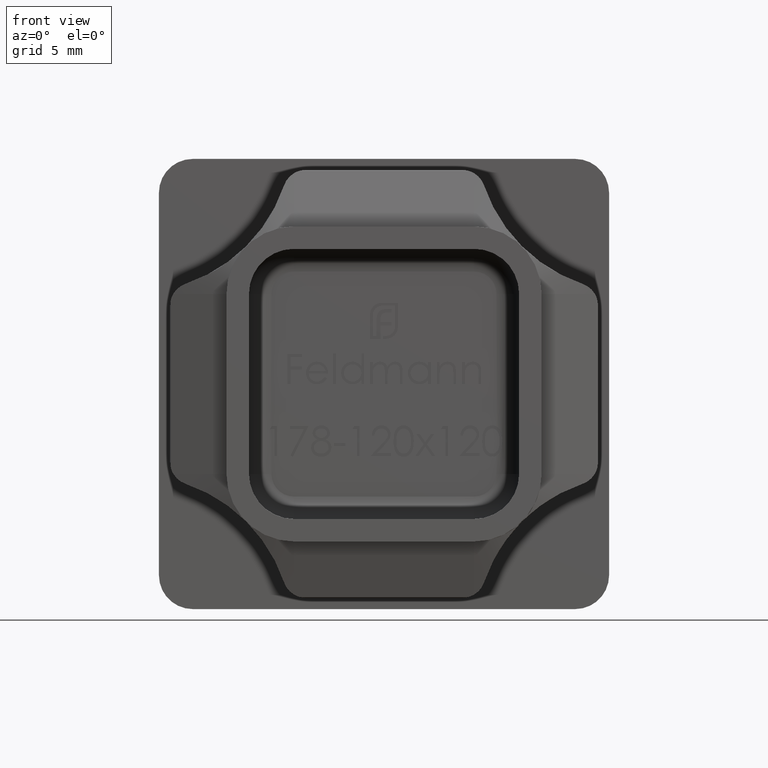
[diagram: clean part render]
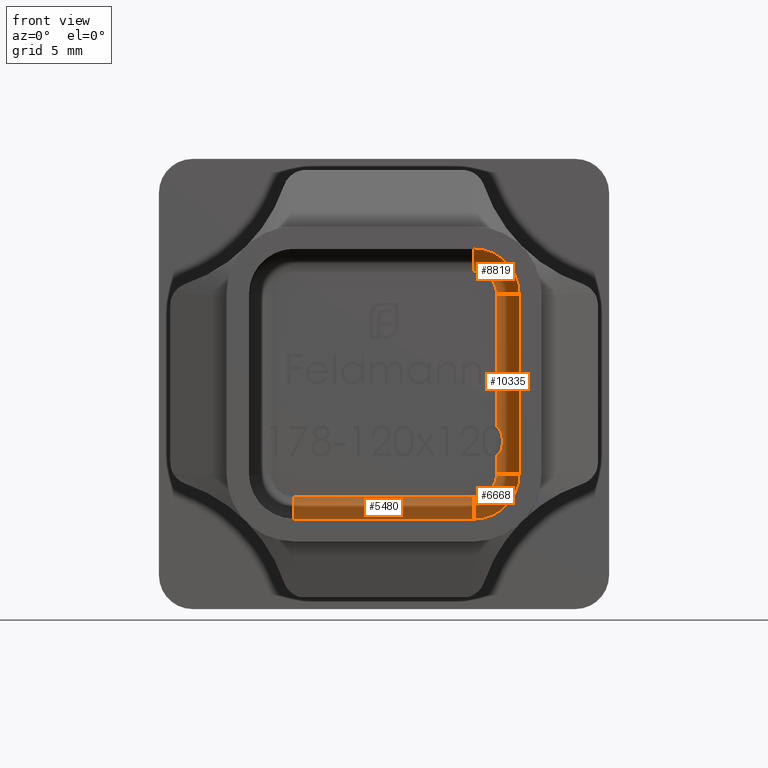
[diagram: same view with one multi-face feature highlighted, each face labeled with its STEP entity id]
A machine part, front view. The highlighted faces form ONE feature: a constant-radius fillet chain: 4 tangent blend faces with common blend radius 1 mm. The faces share edges in the B-rep.
Their STEP definitions:
[1] entity #8819 (Torus):
#33 = DIRECTION ( 'NONE',  ( 0.000000000000000000, 0.000000000000000000, 1.000000000000000000 ) ) ;
#50 = EDGE_CURVE ( 'NONE', #6361, #5441, #16951, .T. ) ;
#598 = DIRECTION ( 'NONE',  ( 0.000000000000000000, 0.000000000000000000, -1.000000000000000000 ) ) ;
#1457 = ORIENTED_EDGE ( 'NONE', *, *, #3146, .T. ) ;
#1597 = DIRECTION ( 'NONE',  ( 0.000000000000000000, 1.000000000000000000, 0.000000000000000000 ) ) ;
#1904 = ORIENTED_EDGE ( 'NONE', *, *, #17298, .F. ) ;
#2027 = TOROIDAL_SURFACE ( 'NONE', #6245, 1.000000000000001776, 1.000000000000000000 ) ;
#2765 = DIRECTION ( 'NONE',  ( -1.000000000000000000, 0.000000000000000000, -3.469446951953614189E-15 ) ) ;
#3146 = EDGE_CURVE ( 'NONE', #6361, #4180, #13253, .T. ) ;
#3607 = AXIS2_PLACEMENT_3D ( 'NONE', #11734, #16352, #598 ) ;
#3616 = CARTESIAN_POINT ( 'NONE',  ( 3.999999999999982681, 0.000000000000000000, 3.999999999999996447 ) ) ;
#4180 = VERTEX_POINT ( 'NONE', #7551 ) ;
#5441 = VERTEX_POINT ( 'NONE', #8941 ) ;
#5924 = ORIENTED_EDGE ( 'NONE', *, *, #18474, .F. ) ;
#6245 = AXIS2_PLACEMENT_3D ( 'NONE', #17070, #20343, #7537 ) ;
#6361 = VERTEX_POINT ( 'NONE', #17068 ) ;
#6940 = VERTEX_POINT ( 'NONE', #11846 ) ;
#7537 = DIRECTION ( 'NONE',  ( 0.000000000000000000, 0.000000000000000000, 1.000000000000000000 ) ) ;
#7551 = CARTESIAN_POINT ( 'NONE',  ( 5.999999999999984901, -1.000000000000000888, 4.000000000000003553 ) ) ;
#8171 = ORIENTED_EDGE ( 'NONE', *, *, #50, .F. ) ;
#8481 = FACE_OUTER_BOUND ( 'NONE', #17031, .T. ) ;
#8819 = ADVANCED_FACE ( 'NONE', ( #8481 ), #2027, .F. ) ;
#8941 = CARTESIAN_POINT ( 'NONE',  ( 3.999999999999976019, 0.000000000000000000, 4.999999999999998224 ) ) ;
#9557 = CARTESIAN_POINT ( 'NONE',  ( 3.999999999999982681, -1.000000000000000888, 3.999999999999996447 ) ) ;
#11734 = CARTESIAN_POINT ( 'NONE',  ( 3.999999999999976019, -1.000000000000000000, 4.999999999999998224 ) ) ;
#11846 = CARTESIAN_POINT ( 'NONE',  ( 3.999999999999976019, -1.000000000000000888, 5.999999999999998224 ) ) ;
#12374 = AXIS2_PLACEMENT_3D ( 'NONE', #3616, #16254, #17713 ) ;
#13253 = CIRCLE ( 'NONE', #19574, 1.000000000000000000 ) ;
#15086 = AXIS2_PLACEMENT_3D ( 'NONE', #9557, #1597, #33 ) ;
#15260 = CARTESIAN_POINT ( 'NONE',  ( 4.999999999999984901, -1.000000000000000000, 4.000000000000000000 ) ) ;
#16254 = DIRECTION ( 'NONE',  ( -0.000000000000000000, -1.000000000000000000, -0.000000000000000000 ) ) ;
#16352 = DIRECTION ( 'NONE',  ( 1.000000000000000000, 0.000000000000000000, -0.000000000000000000 ) ) ;
#16454 = CIRCLE ( 'NONE', #15086, 2.000000000000001776 ) ;
#16951 = CIRCLE ( 'NONE', #12374, 1.000000000000001776 ) ;
#17031 = EDGE_LOOP ( 'NONE', ( #1457, #1904, #5924, #8171 ) ) ;
#17068 = CARTESIAN_POINT ( 'NONE',  ( 4.999999999999984901, 0.000000000000000000, 4.000000000000000000 ) ) ;
#17070 = CARTESIAN_POINT ( 'NONE',  ( 3.999999999999982681, -1.000000000000000888, 3.999999999999996447 ) ) ;
#17182 = CIRCLE ( 'NONE', #3607, 1.000000000000000000 ) ;
#17298 = EDGE_CURVE ( 'NONE', #6940, #4180, #16454, .T. ) ;
#17713 = DIRECTION ( 'NONE',  ( 2.168404344971005081E-14, 0.000000000000000000, 1.000000000000000000 ) ) ;
#18474 = EDGE_CURVE ( 'NONE', #5441, #6940, #17182, .T. ) ;
#19574 = AXIS2_PLACEMENT_3D ( 'NONE', #15260, #20001, #2765 ) ;
#20001 = DIRECTION ( 'NONE',  ( 3.469446951953614189E-15, 0.000000000000000000, -1.000000000000000000 ) ) ;
#20343 = DIRECTION ( 'NONE',  ( 0.000000000000000000, 1.000000000000000000, 0.000000000000000000 ) ) ;
[2] entity #10335 (Cylinder):
#73 = CARTESIAN_POINT ( 'NONE',  ( 5.999999999999984901, -1.000000000000000888, 4.000000000000003553 ) ) ;
#780 = DIRECTION ( 'NONE',  ( 8.673617379884059138E-16, -0.000000000000000000, 1.000000000000000000 ) ) ;
#858 = CARTESIAN_POINT ( 'NONE',  ( 4.999999999999981348, -1.000000000000000000, -4.336808689942013003E-15 ) ) ;
#880 = AXIS2_PLACEMENT_3D ( 'NONE', #9357, #19337, #16129 ) ;
#1015 = VECTOR ( 'NONE', #780, 1000.000000000000000 ) ;
#1353 = VERTEX_POINT ( 'NONE', #20178 ) ;
#2068 = CARTESIAN_POINT ( 'NONE',  ( 4.999999990512664638, 0.000000000000000000, -1.900706125365534183 ) ) ;
#2183 = CARTESIAN_POINT ( 'NONE',  ( 5.105604138429948868, -2.001115337888283935E-17, -3.123518173612068072 ) ) ;
#2514 = DIRECTION ( 'NONE',  ( 1.000000000000000000, 0.000000000000000000, -8.673617379884058152E-16 ) ) ;
#2765 = DIRECTION ( 'NONE',  ( -1.000000000000000000, 0.000000000000000000, -3.469446951953614189E-15 ) ) ;
#2774 = CYLINDRICAL_SURFACE ( 'NONE', #19910, 1.000000000000000000 ) ;
#2833 = B_SPLINE_CURVE_WITH_KNOTS ( 'NONE', 3,
 ( #16718, #2183, #3819, #14847, #5403, #16789 ),
 .UNSPECIFIED., .F., .F.,
 ( 4, 2, 4 ),
 ( 7.407889679973177123E-12, 0.0003621747106927957296, 0.0007243494139777018363 ),
 .UNSPECIFIED. ) ;
#2997 = CARTESIAN_POINT ( 'NONE',  ( 4.999999999999981348, 0.000000000000000000, -4.336808689942013003E-15 ) ) ;
#3146 = EDGE_CURVE ( 'NONE', #6361, #4180, #13253, .T. ) ;
#3332 = ORIENTED_EDGE ( 'NONE', *, *, #6148, .F. ) ;
#3365 = B_SPLINE_CURVE_WITH_KNOTS ( 'NONE', 3,
 ( #5296, #5152, #18008, #17781, #19480, #2068 ),
 .UNSPECIFIED., .F., .F.,
 ( 4, 2, 4 ),
 ( 0.000000000000000000, 0.0003608629249519348025, 0.0007217258499038696051 ),
 .UNSPECIFIED. ) ;
#3788 = VECTOR ( 'NONE', #19105, 1000.000000000000000 ) ;
#3819 = CARTESIAN_POINT ( 'NONE',  ( 5.175598494840011554, -0.01481395747498494460, -3.016206464346978144 ) ) ;
#3999 = ORIENTED_EDGE ( 'NONE', *, *, #3146, .F. ) ;
#4180 = VERTEX_POINT ( 'NONE', #7551 ) ;
#4195 = ORIENTED_EDGE ( 'NONE', *, *, #6566, .F. ) ;
#4232 = VERTEX_POINT ( 'NONE', #12761 ) ;
#4311 = EDGE_CURVE ( 'NONE', #12402, #1353, #12495, .T. ) ;
#4814 = VECTOR ( 'NONE', #17289, 1000.000000000000000 ) ;
#5152 = CARTESIAN_POINT ( 'NONE',  ( 5.256293822818436823, -0.03339990977814485257, -2.422902983920533160 ) ) ;
#5278 = LINE ( 'NONE', #73, #3788 ) ;
#5296 = CARTESIAN_POINT ( 'NONE',  ( 5.257745726495721250, -0.03378721780697710453, -2.543932792467948900 ) ) ;
#5403 = CARTESIAN_POINT ( 'NONE',  ( 5.256273014586601455, -0.03339435899996154311, -2.664907572153072390 ) ) ;
#5704 = CARTESIAN_POINT ( 'NONE',  ( 4.999999990512664638, 0.000000000000000000, -1.900706125365534183 ) ) ;
#5790 = EDGE_LOOP ( 'NONE', ( #9144, #3332, #3999, #4195, #8849, #14836, #18813 ) ) ;
#6092 = CARTESIAN_POINT ( 'NONE',  ( 5.000000009685904523, 0.000000000000000000, -3.185670050150754662 ) ) ;
#6148 = EDGE_CURVE ( 'NONE', #4180, #1353, #5278, .T. ) ;
#6361 = VERTEX_POINT ( 'NONE', #17068 ) ;
#6566 = EDGE_CURVE ( 'NONE', #12616, #6361, #16872, .T. ) ;
#7159 = CARTESIAN_POINT ( 'NONE',  ( 4.999999999999981348, 0.000000000000000000, -4.336808689942013003E-15 ) ) ;
#7551 = CARTESIAN_POINT ( 'NONE',  ( 5.999999999999984901, -1.000000000000000888, 4.000000000000003553 ) ) ;
#8172 = EDGE_CURVE ( 'NONE', #4232, #12616, #3365, .T. ) ;
#8602 = EDGE_CURVE ( 'NONE', #12402, #8900, #14193, .T. ) ;
#8670 = DIRECTION ( 'NONE',  ( 8.673617379884059138E-16, -0.000000000000000000, 1.000000000000000000 ) ) ;
#8849 = ORIENTED_EDGE ( 'NONE', *, *, #8172, .F. ) ;
#8900 = VERTEX_POINT ( 'NONE', #6092 ) ;
#9144 = ORIENTED_EDGE ( 'NONE', *, *, #4311, .T. ) ;
#9357 = CARTESIAN_POINT ( 'NONE',  ( 4.999999999999981348, -1.000000000000000000, -3.999999999999975131 ) ) ;
#9564 = CARTESIAN_POINT ( 'NONE',  ( 4.999999999999981348, 0.000000000000000000, -3.999999999999975131 ) ) ;
#9958 = FACE_OUTER_BOUND ( 'NONE', #5790, .T. ) ;
#10335 = ADVANCED_FACE ( 'NONE', ( #9958 ), #2774, .F. ) ;
#12402 = VERTEX_POINT ( 'NONE', #9564 ) ;
#12495 = CIRCLE ( 'NONE', #880, 1.000000000000000000 ) ;
#12616 = VERTEX_POINT ( 'NONE', #5704 ) ;
#12761 = CARTESIAN_POINT ( 'NONE',  ( 5.257745726495721250, -0.03378721780697710453, -2.543932792467948900 ) ) ;
#13253 = CIRCLE ( 'NONE', #19574, 1.000000000000000000 ) ;
#14193 = LINE ( 'NONE', #2997, #4814 ) ;
#14836 = ORIENTED_EDGE ( 'NONE', *, *, #18167, .F. ) ;
#14847 = CARTESIAN_POINT ( 'NONE',  ( 5.249407933733455600, -0.03086530741749634113, -2.786669984339080752 ) ) ;
#15260 = CARTESIAN_POINT ( 'NONE',  ( 4.999999999999984901, -1.000000000000000000, 4.000000000000000000 ) ) ;
#16129 = DIRECTION ( 'NONE',  ( -1.000000000000000000, 0.000000000000000000, 8.673617379884035472E-16 ) ) ;
#16718 = CARTESIAN_POINT ( 'NONE',  ( 5.000000009685904523, 0.000000000000000000, -3.185670050150754662 ) ) ;
#16789 = CARTESIAN_POINT ( 'NONE',  ( 5.257745726495721250, -0.03378721780697710453, -2.543932792467948900 ) ) ;
#16872 = LINE ( 'NONE', #7159, #1015 ) ;
#17068 = CARTESIAN_POINT ( 'NONE',  ( 4.999999999999984901, 0.000000000000000000, 4.000000000000000000 ) ) ;
#17289 = DIRECTION ( 'NONE',  ( 8.673617379884059138E-16, -0.000000000000000000, 1.000000000000000000 ) ) ;
#17781 = CARTESIAN_POINT ( 'NONE',  ( 5.174391557781304662, -0.01456602889882599450, -2.070351828751281431 ) ) ;
#18008 = CARTESIAN_POINT ( 'NONE',  ( 5.249899296130951853, -0.03095775705139057130, -2.301959710432628814 ) ) ;
#18167 = EDGE_CURVE ( 'NONE', #8900, #4232, #2833, .T. ) ;
#18813 = ORIENTED_EDGE ( 'NONE', *, *, #8602, .F. ) ;
#19105 = DIRECTION ( 'NONE',  ( -8.673617379884059138E-16, -0.000000000000000000, -1.000000000000000000 ) ) ;
#19337 = DIRECTION ( 'NONE',  ( -8.673617379884035472E-16, 0.000000000000000000, -1.000000000000000000 ) ) ;
#19480 = CARTESIAN_POINT ( 'NONE',  ( 5.106415925215519458, 2.908415649192451414E-10, -1.962350787903712979 ) ) ;
#19574 = AXIS2_PLACEMENT_3D ( 'NONE', #15260, #20001, #2765 ) ;
#19910 = AXIS2_PLACEMENT_3D ( 'NONE', #858, #8670, #2514 ) ;
#20001 = DIRECTION ( 'NONE',  ( 3.469446951953614189E-15, 0.000000000000000000, -1.000000000000000000 ) ) ;
#20178 = CARTESIAN_POINT ( 'NONE',  ( 5.999999999999977796, -1.000000000000000888, -3.999999999999976019 ) ) ;
[3] entity #6668 (Torus):
#331 = DIRECTION ( 'NONE',  ( 0.000000000000000000, 0.000000000000000000, 1.000000000000000000 ) ) ;
#772 = ORIENTED_EDGE ( 'NONE', *, *, #4311, .F. ) ;
#856 = VERTEX_POINT ( 'NONE', #8283 ) ;
#880 = AXIS2_PLACEMENT_3D ( 'NONE', #9357, #19337, #16129 ) ;
#1353 = VERTEX_POINT ( 'NONE', #20178 ) ;
#2509 = FACE_OUTER_BOUND ( 'NONE', #10348, .T. ) ;
#2720 = DIRECTION ( 'NONE',  ( 0.000000000000000000, 1.000000000000000000, 0.000000000000000000 ) ) ;
#3207 = VERTEX_POINT ( 'NONE', #15688 ) ;
#4311 = EDGE_CURVE ( 'NONE', #12402, #1353, #12495, .T. ) ;
#5575 = AXIS2_PLACEMENT_3D ( 'NONE', #12182, #12613, #17445 ) ;
#6308 = CARTESIAN_POINT ( 'NONE',  ( 3.999999999999982681, -1.000000000000000000, -4.999999999999984901 ) ) ;
#6668 = ADVANCED_FACE ( 'NONE', ( #2509 ), #12433, .F. ) ;
#7480 = CIRCLE ( 'NONE', #8766, 1.000000000000000000 ) ;
#8283 = CARTESIAN_POINT ( 'NONE',  ( 3.999999999999982681, 0.000000000000000000, -4.999999999999984901 ) ) ;
#8335 = EDGE_CURVE ( 'NONE', #1353, #3207, #13206, .T. ) ;
#8766 = AXIS2_PLACEMENT_3D ( 'NONE', #6308, #14163, #18828 ) ;
#9357 = CARTESIAN_POINT ( 'NONE',  ( 4.999999999999981348, -1.000000000000000000, -3.999999999999975131 ) ) ;
#9564 = CARTESIAN_POINT ( 'NONE',  ( 4.999999999999981348, 0.000000000000000000, -3.999999999999975131 ) ) ;
#10348 = EDGE_LOOP ( 'NONE', ( #12596, #17306, #772, #19778 ) ) ;
#10913 = DIRECTION ( 'NONE',  ( -0.000000000000000000, -1.000000000000000000, -0.000000000000000000 ) ) ;
#11729 = CARTESIAN_POINT ( 'NONE',  ( 3.999999999999982681, -1.000000000000000888, -3.999999999999982681 ) ) ;
#12182 = CARTESIAN_POINT ( 'NONE',  ( 3.999999999999982681, -1.000000000000000888, -3.999999999999982681 ) ) ;
#12207 = AXIS2_PLACEMENT_3D ( 'NONE', #15738, #10913, #331 ) ;
#12402 = VERTEX_POINT ( 'NONE', #9564 ) ;
#12433 = TOROIDAL_SURFACE ( 'NONE', #18420, 0.9999999999999983347, 1.000000000000000000 ) ;
#12495 = CIRCLE ( 'NONE', #880, 1.000000000000000000 ) ;
#12596 = ORIENTED_EDGE ( 'NONE', *, *, #19843, .T. ) ;
#12613 = DIRECTION ( 'NONE',  ( 0.000000000000000000, 1.000000000000000000, 0.000000000000000000 ) ) ;
#13206 = CIRCLE ( 'NONE', #5575, 1.999999999999998224 ) ;
#13777 = DIRECTION ( 'NONE',  ( 0.000000000000000000, 0.000000000000000000, 1.000000000000000000 ) ) ;
#14163 = DIRECTION ( 'NONE',  ( -1.000000000000000000, 0.000000000000000000, 0.000000000000000000 ) ) ;
#14953 = CIRCLE ( 'NONE', #12207, 0.9999999999999983347 ) ;
#15688 = CARTESIAN_POINT ( 'NONE',  ( 3.999999999999982681, -1.000000000000000888, -5.999999999999981348 ) ) ;
#15738 = CARTESIAN_POINT ( 'NONE',  ( 3.999999999999982681, 0.000000000000000000, -3.999999999999982681 ) ) ;
#16129 = DIRECTION ( 'NONE',  ( -1.000000000000000000, 0.000000000000000000, 8.673617379884035472E-16 ) ) ;
#16981 = EDGE_CURVE ( 'NONE', #856, #12402, #14953, .T. ) ;
#17306 = ORIENTED_EDGE ( 'NONE', *, *, #8335, .F. ) ;
#17445 = DIRECTION ( 'NONE',  ( 0.000000000000000000, 0.000000000000000000, 1.000000000000000000 ) ) ;
#18420 = AXIS2_PLACEMENT_3D ( 'NONE', #11729, #2720, #13777 ) ;
#18828 = DIRECTION ( 'NONE',  ( 0.000000000000000000, 0.000000000000000000, 1.000000000000000000 ) ) ;
#19337 = DIRECTION ( 'NONE',  ( -8.673617379884035472E-16, 0.000000000000000000, -1.000000000000000000 ) ) ;
#19778 = ORIENTED_EDGE ( 'NONE', *, *, #16981, .F. ) ;
#19843 = EDGE_CURVE ( 'NONE', #856, #3207, #7480, .T. ) ;
#20178 = CARTESIAN_POINT ( 'NONE',  ( 5.999999999999977796, -1.000000000000000888, -3.999999999999976019 ) ) ;
[4] entity #5480 (Cylinder):
#80 = ORIENTED_EDGE ( 'NONE', *, *, #14552, .F. ) ;
#159 = VECTOR ( 'NONE', #13197, 1000.000000000000000 ) ;
#264 = CARTESIAN_POINT ( 'NONE',  ( -4.000000000000003553, -1.000000000000000888, -5.999999999999984901 ) ) ;
#538 = CARTESIAN_POINT ( 'NONE',  ( -4.000000000000003553, -1.000000000000000888, -5.999999999999984901 ) ) ;
#782 = DIRECTION ( 'NONE',  ( 1.000000000000000000, -0.000000000000000000, 0.000000000000000000 ) ) ;
#853 = DIRECTION ( 'NONE',  ( 0.000000000000000000, 0.000000000000000000, -1.000000000000000000 ) ) ;
#856 = VERTEX_POINT ( 'NONE', #8283 ) ;
#2670 = EDGE_CURVE ( 'NONE', #3207, #2688, #14481, .T. ) ;
#2688 = VERTEX_POINT ( 'NONE', #538 ) ;
#2761 = LINE ( 'NONE', #16325, #17594 ) ;
#3207 = VERTEX_POINT ( 'NONE', #15688 ) ;
#4702 = AXIS2_PLACEMENT_3D ( 'NONE', #5558, #5283, #8575 ) ;
#5220 = ORIENTED_EDGE ( 'NONE', *, *, #2670, .F. ) ;
#5283 = DIRECTION ( 'NONE',  ( 1.000000000000000000, -0.000000000000000000, 0.000000000000000000 ) ) ;
#5480 = ADVANCED_FACE ( 'NONE', ( #8003 ), #9713, .F. ) ;
#5558 = CARTESIAN_POINT ( 'NONE',  ( -4.000000000000003553, -1.000000000000000000, -4.999999999999984901 ) ) ;
#6199 = ORIENTED_EDGE ( 'NONE', *, *, #19843, .F. ) ;
#6308 = CARTESIAN_POINT ( 'NONE',  ( 3.999999999999982681, -1.000000000000000000, -4.999999999999984901 ) ) ;
#7480 = CIRCLE ( 'NONE', #8766, 1.000000000000000000 ) ;
#8003 = FACE_OUTER_BOUND ( 'NONE', #19311, .T. ) ;
#8139 = EDGE_CURVE ( 'NONE', #20032, #856, #2761, .T. ) ;
#8283 = CARTESIAN_POINT ( 'NONE',  ( 3.999999999999982681, 0.000000000000000000, -4.999999999999984901 ) ) ;
#8383 = DIRECTION ( 'NONE',  ( 1.000000000000000000, -0.000000000000000000, 0.000000000000000000 ) ) ;
#8575 = DIRECTION ( 'NONE',  ( 0.000000000000000000, 0.000000000000000000, -1.000000000000000000 ) ) ;
#8766 = AXIS2_PLACEMENT_3D ( 'NONE', #6308, #14163, #18828 ) ;
#9615 = ORIENTED_EDGE ( 'NONE', *, *, #8139, .F. ) ;
#9713 = CYLINDRICAL_SURFACE ( 'NONE', #18542, 1.000000000000000000 ) ;
#12052 = CIRCLE ( 'NONE', #4702, 1.000000000000000000 ) ;
#13197 = DIRECTION ( 'NONE',  ( -1.000000000000000000, -0.000000000000000000, -0.000000000000000000 ) ) ;
#14163 = DIRECTION ( 'NONE',  ( -1.000000000000000000, 0.000000000000000000, 0.000000000000000000 ) ) ;
#14481 = LINE ( 'NONE', #264, #159 ) ;
#14552 = EDGE_CURVE ( 'NONE', #2688, #20032, #12052, .T. ) ;
#15163 = CARTESIAN_POINT ( 'NONE',  ( 0.000000000000000000, -1.000000000000000000, -4.999999999999984901 ) ) ;
#15688 = CARTESIAN_POINT ( 'NONE',  ( 3.999999999999982681, -1.000000000000000888, -5.999999999999981348 ) ) ;
#16325 = CARTESIAN_POINT ( 'NONE',  ( 0.000000000000000000, 0.000000000000000000, -4.999999999999984901 ) ) ;
#17594 = VECTOR ( 'NONE', #8383, 1000.000000000000000 ) ;
#18463 = CARTESIAN_POINT ( 'NONE',  ( -4.000000000000003553, 0.000000000000000000, -4.999999999999984901 ) ) ;
#18542 = AXIS2_PLACEMENT_3D ( 'NONE', #15163, #782, #853 ) ;
#18828 = DIRECTION ( 'NONE',  ( 0.000000000000000000, 0.000000000000000000, 1.000000000000000000 ) ) ;
#19311 = EDGE_LOOP ( 'NONE', ( #80, #5220, #6199, #9615 ) ) ;
#19843 = EDGE_CURVE ( 'NONE', #856, #3207, #7480, .T. ) ;
#20032 = VERTEX_POINT ( 'NONE', #18463 ) ;